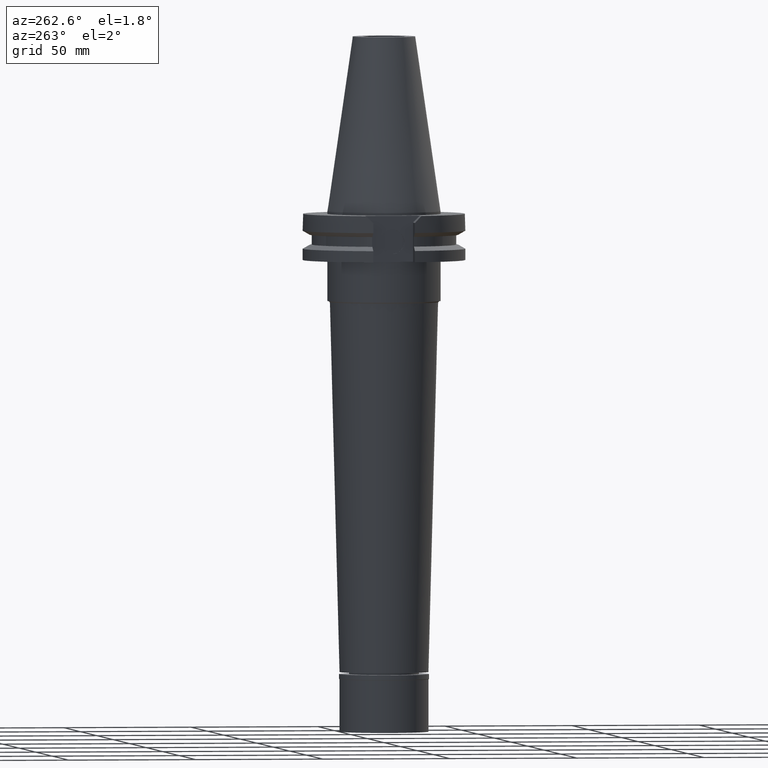
[diagram: clean part render]
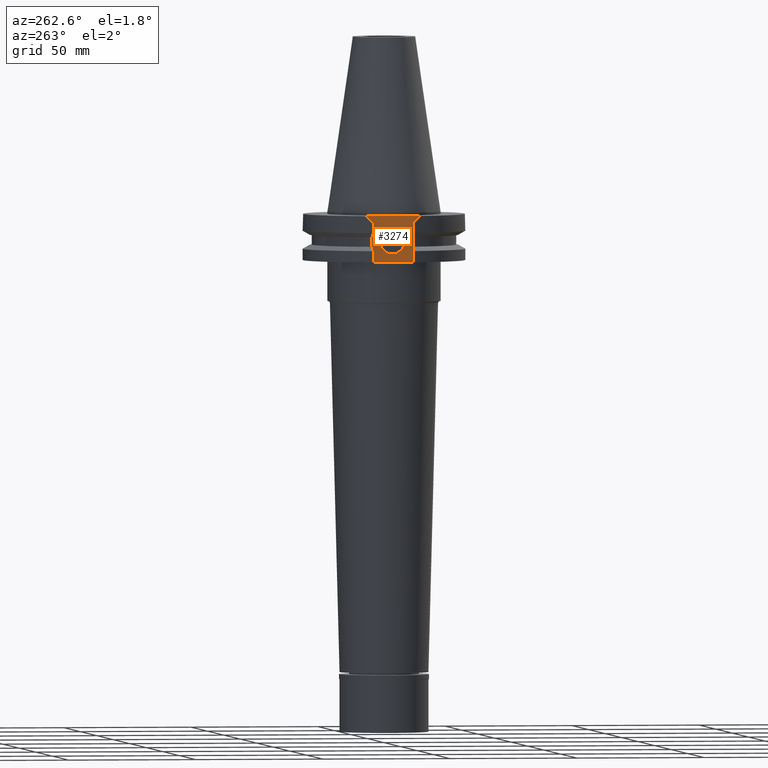
[diagram: same view with one face highlighted and labeled with its STEP entity id]
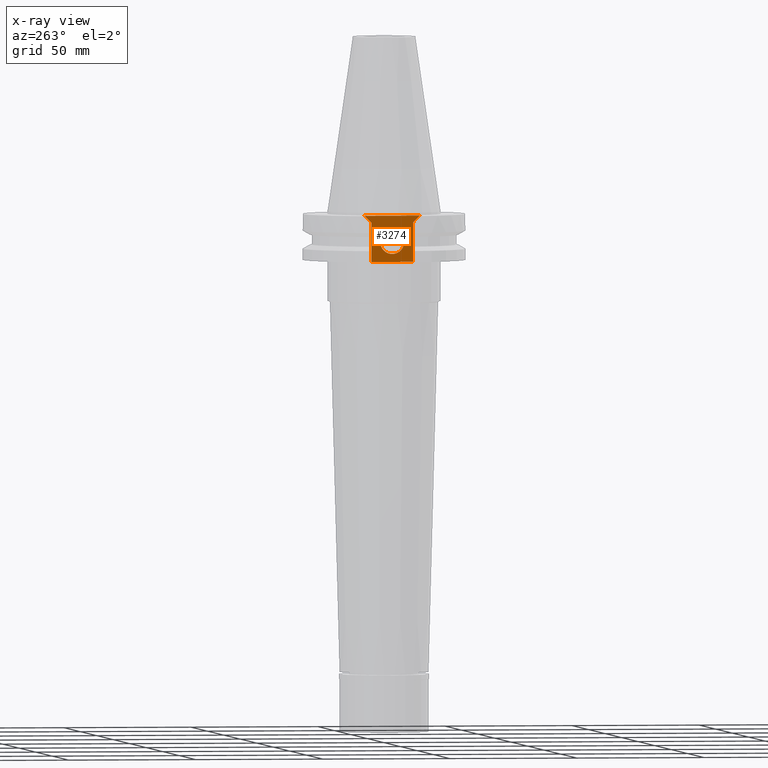
[diagram: x-ray of the same camera — body ghosted, the highlighted face saturated]
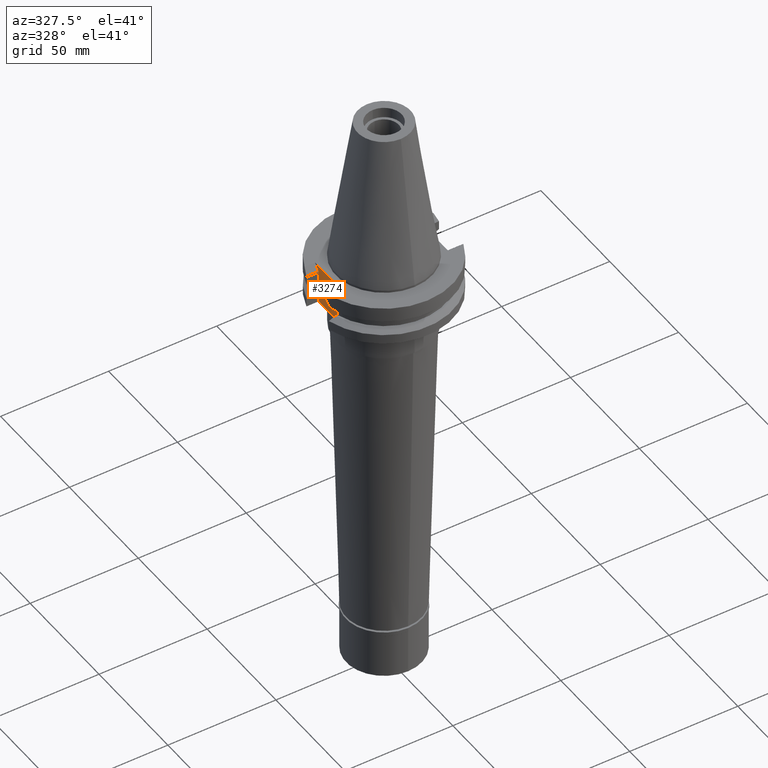
[diagram: same view with one face highlighted and labeled with its STEP entity id]
A machine part, auxiliary view. The second image highlights one B-rep face of the part: STEP entity #3274.
The next image is the same camera in x-ray: the body ghosted, the highlighted face saturated — about 0% of this face is hidden behind the body in this view.
A second angle (auxiliary view) of the same face is appended — the face is thin or edge-on in the first view.
In plain terms, the highlighted planar face has unit normal (1, 0, 0).
Its self-contained STEP definition (entity closure, byte-faithful):
#26 = LINE ( 'NONE', #1009, #522 ) ;
#32 = ORIENTED_EDGE ( 'NONE', *, *, #821, .T. ) ;
#54 = CARTESIAN_POINT ( 'NONE',  ( -24.98000000000000043, -10.89000000000000057, -1.000000000000000000 ) ) ;
#84 = CARTESIAN_POINT ( 'NONE',  ( -24.98000000000000043, 10.89000000000000057, -1.000000000000000000 ) ) ;
#114 = CIRCLE ( 'NONE', #1837, 4.762500000000000178 ) ;
#124 = CARTESIAN_POINT ( 'NONE',  ( -24.98000000000000043, -8.189999999999999503, -3.700000000000000178 ) ) ;
#243 = FACE_OUTER_BOUND ( 'NONE', #3034, .T. ) ;
#325 = EDGE_CURVE ( 'NONE', #1968, #2108, #3091, .T. ) ;
#328 = DIRECTION ( 'NONE',  ( 0.0000000000000000000, -1.000000000000000000, 0.0000000000000000000 ) ) ;
#378 = LINE ( 'NONE', #2179, #2043 ) ;
#387 = CARTESIAN_POINT ( 'NONE',  ( -24.98000000000000043, -8.189999999999999503, -19.05000000000000071 ) ) ;
#417 = VECTOR ( 'NONE', #1614, 1000.000000000000114 ) ;
#427 = FACE_BOUND ( 'NONE', #3344, .T. ) ;
#522 = VECTOR ( 'NONE', #2050, 1000.000000000000000 ) ;
#665 = CARTESIAN_POINT ( 'NONE',  ( -24.98000000000000043, 8.189999999999999503, -3.700000000000000178 ) ) ;
#689 = AXIS2_PLACEMENT_3D ( 'NONE', #1149, #1399, #3182 ) ;
#715 = CARTESIAN_POINT ( 'NONE',  ( -24.98000000000000043, -8.189999999999999503, -19.05000000000000071 ) ) ;
#718 = ORIENTED_EDGE ( 'NONE', *, *, #849, .F. ) ;
#747 = CIRCLE ( 'NONE', #689, 4.762500000000000178 ) ;
#821 = EDGE_CURVE ( 'NONE', #2872, #1968, #378, .T. ) ;
#836 = LINE ( 'NONE', #3238, #417 ) ;
#838 = VECTOR ( 'NONE', #2515, 1000.000000000000114 ) ;
#849 = EDGE_CURVE ( 'NONE', #1216, #2108, #836, .T. ) ;
#861 = ORIENTED_EDGE ( 'NONE', *, *, #3338, .F. ) ;
#914 = EDGE_CURVE ( 'NONE', #3225, #2458, #2817, .T. ) ;
#933 = VERTEX_POINT ( 'NONE', #1247 ) ;
#1009 = CARTESIAN_POINT ( 'NONE',  ( -24.98000000000000043, 10.89000000000000057, -1.000000000000000000 ) ) ;
#1075 = ORIENTED_EDGE ( 'NONE', *, *, #2062, .T. ) ;
#1149 = CARTESIAN_POINT ( 'NONE',  ( -24.98000000000000043, 0.0000000000000000000, -11.18000000000000149 ) ) ;
#1167 = EDGE_CURVE ( 'NONE', #2458, #1216, #26, .T. ) ;
#1186 = VERTEX_POINT ( 'NONE', #1576 ) ;
#1216 = VERTEX_POINT ( 'NONE', #54 ) ;
#1235 = DIRECTION ( 'NONE',  ( 0.0000000000000000000, 0.0000000000000000000, 1.000000000000000000 ) ) ;
#1247 = CARTESIAN_POINT ( 'NONE',  ( -24.98000000000000043, -4.762500000000000178, -11.18000000000000149 ) ) ;
#1248 = EDGE_CURVE ( 'NONE', #1186, #933, #747, .T. ) ;
#1399 = DIRECTION ( 'NONE',  ( -1.000000000000000000, 0.0000000000000000000, 0.0000000000000000000 ) ) ;
#1400 = AXIS2_PLACEMENT_3D ( 'NONE', #1449, #2265, #2588 ) ;
#1408 = ORIENTED_EDGE ( 'NONE', *, *, #1167, .F. ) ;
#1420 = CARTESIAN_POINT ( 'NONE',  ( -24.98000000000000043, 8.189999999999999503, -3.700000000000000178 ) ) ;
#1449 = CARTESIAN_POINT ( 'NONE',  ( -24.98000000000000043, 0.0000000000000000000, 0.0000000000000000000 ) ) ;
#1576 = CARTESIAN_POINT ( 'NONE',  ( -24.98000000000000043, 4.762500000000000178, -11.18000000000000149 ) ) ;
#1614 = DIRECTION ( 'NONE',  ( 0.0000000000000000000, 0.7071067811865474617, -0.7071067811865474617 ) ) ;
#1748 = PLANE ( 'NONE',  #1400 ) ;
#1754 = DIRECTION ( 'NONE',  ( 0.0000000000000000000, 0.0000000000000000000, -1.000000000000000000 ) ) ;
#1837 = AXIS2_PLACEMENT_3D ( 'NONE', #2803, #2001, #3357 ) ;
#1873 = ORIENTED_EDGE ( 'NONE', *, *, #914, .F. ) ;
#1968 = VERTEX_POINT ( 'NONE', #387 ) ;
#2001 = DIRECTION ( 'NONE',  ( -1.000000000000000000, 0.0000000000000000000, 0.0000000000000000000 ) ) ;
#2008 = LINE ( 'NONE', #3084, #2657 ) ;
#2043 = VECTOR ( 'NONE', #328, 1000.000000000000000 ) ;
#2050 = DIRECTION ( 'NONE',  ( 0.0000000000000000000, -1.000000000000000000, 0.0000000000000000000 ) ) ;
#2054 = CARTESIAN_POINT ( 'NONE',  ( -24.98000000000000043, 8.189999999999999503, -19.05000000000000071 ) ) ;
#2057 = VECTOR ( 'NONE', #1235, 1000.000000000000000 ) ;
#2062 = EDGE_CURVE ( 'NONE', #3225, #2872, #2008, .T. ) ;
#2108 = VERTEX_POINT ( 'NONE', #124 ) ;
#2179 = CARTESIAN_POINT ( 'NONE',  ( -24.98000000000000043, 8.189999999999999503, -19.05000000000000071 ) ) ;
#2265 = DIRECTION ( 'NONE',  ( 1.000000000000000000, 0.0000000000000000000, 0.0000000000000000000 ) ) ;
#2275 = ORIENTED_EDGE ( 'NONE', *, *, #1248, .F. ) ;
#2320 = ORIENTED_EDGE ( 'NONE', *, *, #325, .T. ) ;
#2458 = VERTEX_POINT ( 'NONE', #84 ) ;
#2515 = DIRECTION ( 'NONE',  ( 0.0000000000000000000, 0.7071067811865474617, 0.7071067811865474617 ) ) ;
#2588 = DIRECTION ( 'NONE',  ( 0.0000000000000000000, 1.000000000000000000, 0.0000000000000000000 ) ) ;
#2657 = VECTOR ( 'NONE', #1754, 1000.000000000000000 ) ;
#2803 = CARTESIAN_POINT ( 'NONE',  ( -24.98000000000000043, 0.0000000000000000000, -11.18000000000000149 ) ) ;
#2817 = LINE ( 'NONE', #665, #838 ) ;
#2872 = VERTEX_POINT ( 'NONE', #2054 ) ;
#3034 = EDGE_LOOP ( 'NONE', ( #2320, #718, #1408, #1873, #1075, #32 ) ) ;
#3084 = CARTESIAN_POINT ( 'NONE',  ( -24.98000000000000043, 8.189999999999999503, -3.700000000000000178 ) ) ;
#3091 = LINE ( 'NONE', #715, #2057 ) ;
#3182 = DIRECTION ( 'NONE',  ( 0.0000000000000000000, 1.000000000000000000, 0.0000000000000000000 ) ) ;
#3225 = VERTEX_POINT ( 'NONE', #1420 ) ;
#3238 = CARTESIAN_POINT ( 'NONE',  ( -24.98000000000000043, -10.89000000000000057, -1.000000000000000000 ) ) ;
#3274 = ADVANCED_FACE ( 'NONE', ( #243, #427 ), #1748, .F. ) ;
#3338 = EDGE_CURVE ( 'NONE', #933, #1186, #114, .T. ) ;
#3344 = EDGE_LOOP ( 'NONE', ( #861, #2275 ) ) ;
#3357 = DIRECTION ( 'NONE',  ( 0.0000000000000000000, -1.000000000000000000, 0.0000000000000000000 ) ) ;